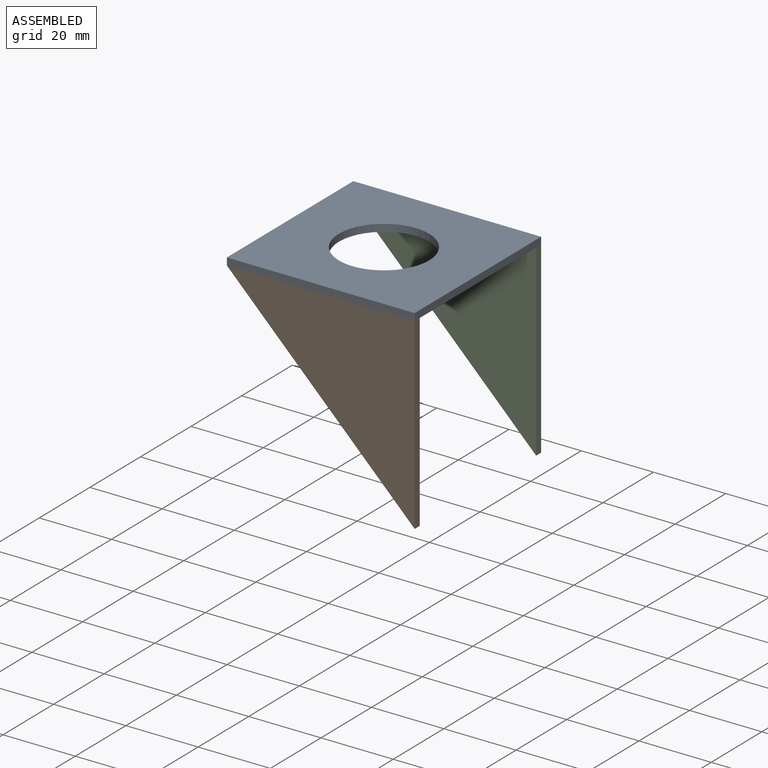
[diagram: assembled view]
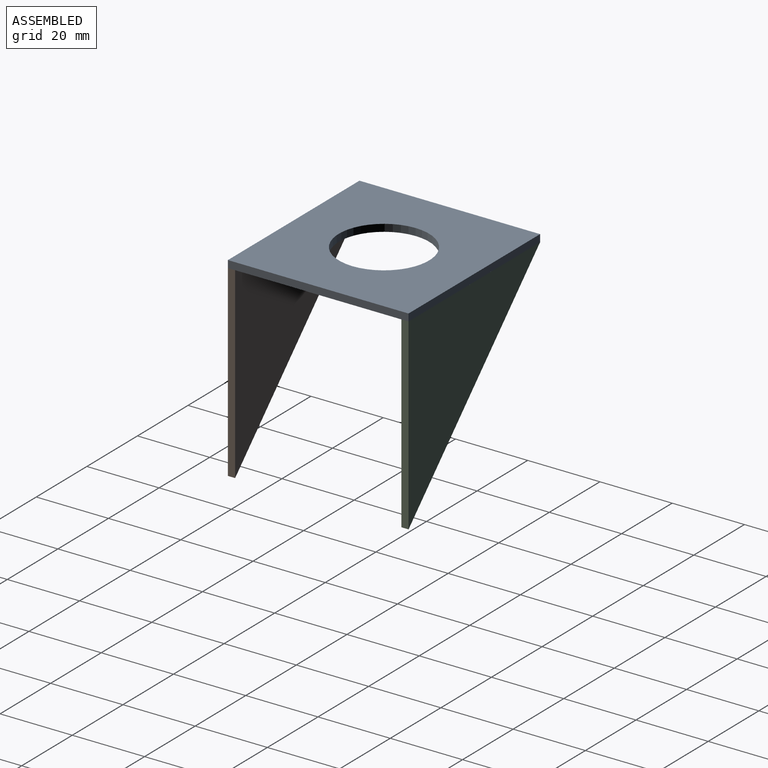
[diagram: assembled view, second angle]
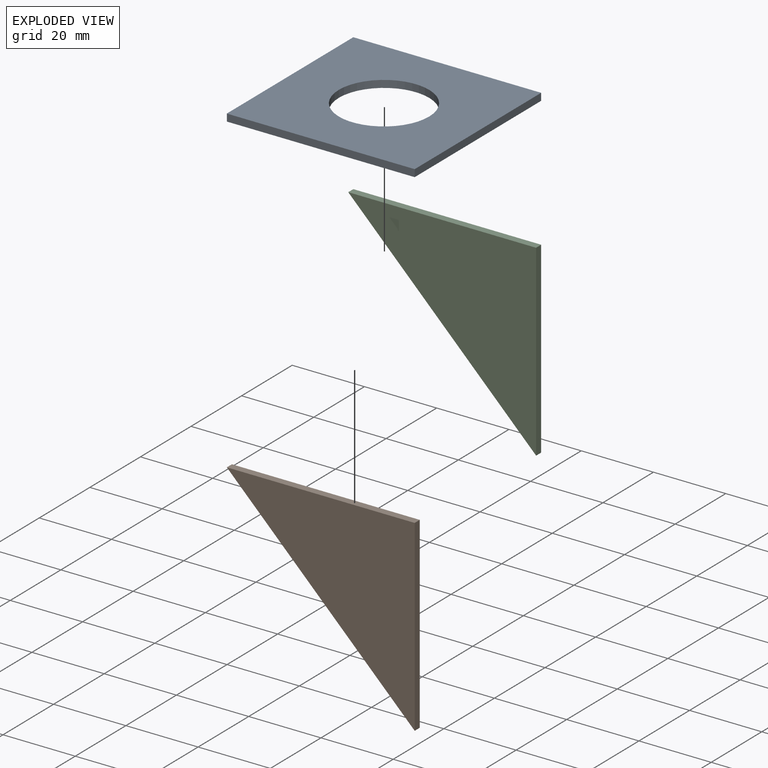
[diagram: exploded view]
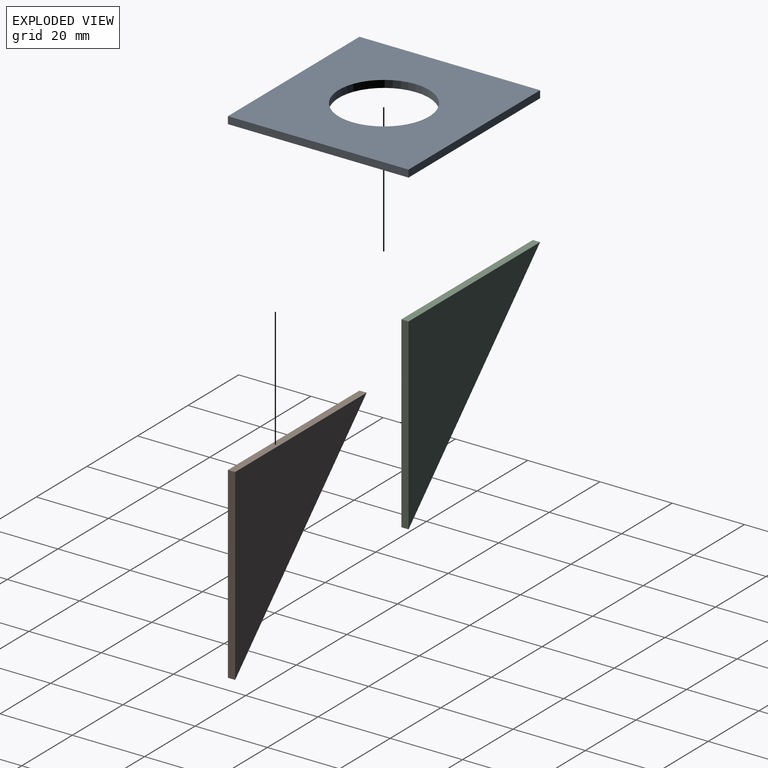
[diagram: exploded view, second angle]
ASSEMBLY  parts=3 mates=2
PART A: 7 faces, bbox 52x50x2 mm
  f0: plane 52x2mm, normal (0,1,0), area 104mm2, adj f1,f3,f4,f5
  f1: plane 50x2mm, normal (-1,0,0), area 100mm2, adj f0,f2,f4,f5
  f2: plane 52x2mm, normal (0,-1,0), area 104mm2, adj f1,f3,f4,f5
  f3: plane 50x2mm, normal (1,0,0), area 100mm2, adj f0,f2,f4,f5
  f4: plane 52x50mm, normal (0,0,1), area 2109.1mm2, adj f0,f1,f2,f3,f6
  f5: plane 52x50mm, normal (0,0,-1), area 2109.1mm2, adj f0,f1,f2,f3,f6
  f6: cylinder r=12.5mm len=25mm, axis (0,0,1), area 157.1mm2, adj f4,f5
PART B: 5 faces, bbox 2x52x52 mm
  f0: plane 52x52mm, normal (0,-0.71,-0.71), area 147.1mm2, adj f1,f2,f3,f4
  f1: plane 52x2mm, normal (0,1,0), area 104mm2, adj f0,f2,f3,f4
  f2: plane 52x2mm, normal (0,0,1), area 104mm2, adj f0,f1,f3,f4
  f3: plane 52x52mm, normal (1,0,0), area 1352mm2, adj f0,f1,f2
  f4: plane 52x52mm, normal (-1,0,0), area 1352mm2, adj f0,f1,f2
PART C: same geometry as B
PLACE A t=(-9.09,-2.09,3.74)mm
PLACE B rot(axis=(0,0,-1),90deg) t=(16.91,-25.09,3.74)mm
PLACE C rot(axis=(0,0,-1),90deg) t=(16.91,22.91,3.74)mm
MATE parallel C.f2 <-> A.f5  axis (0,0,1) through (16.91,22.91,3.74)mm
MATE parallel B.f2 <-> A.f5  axis (0,0,1) through (16.91,-27.09,3.74)mm
